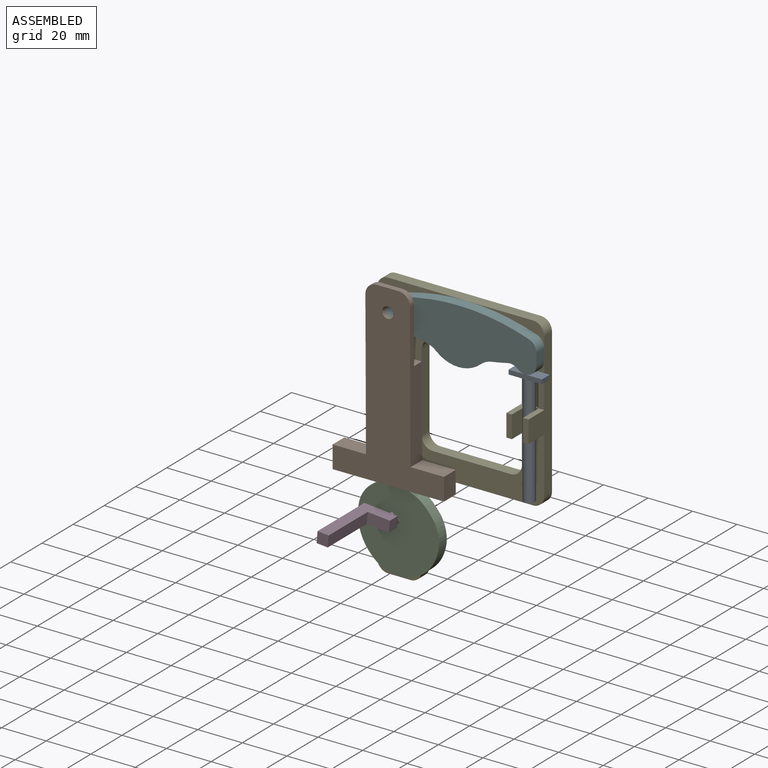
[diagram: assembled view]
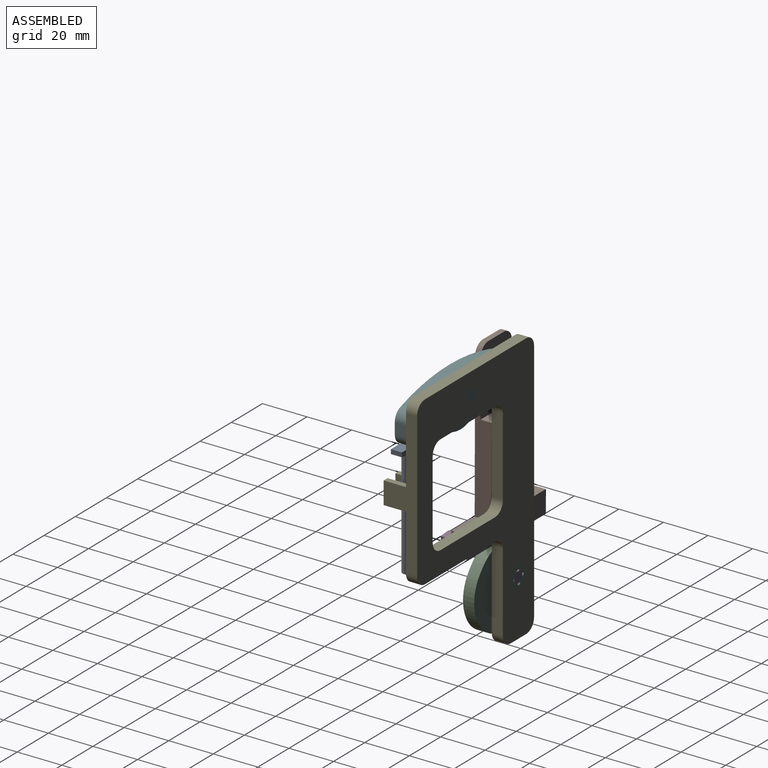
[diagram: assembled view, second angle]
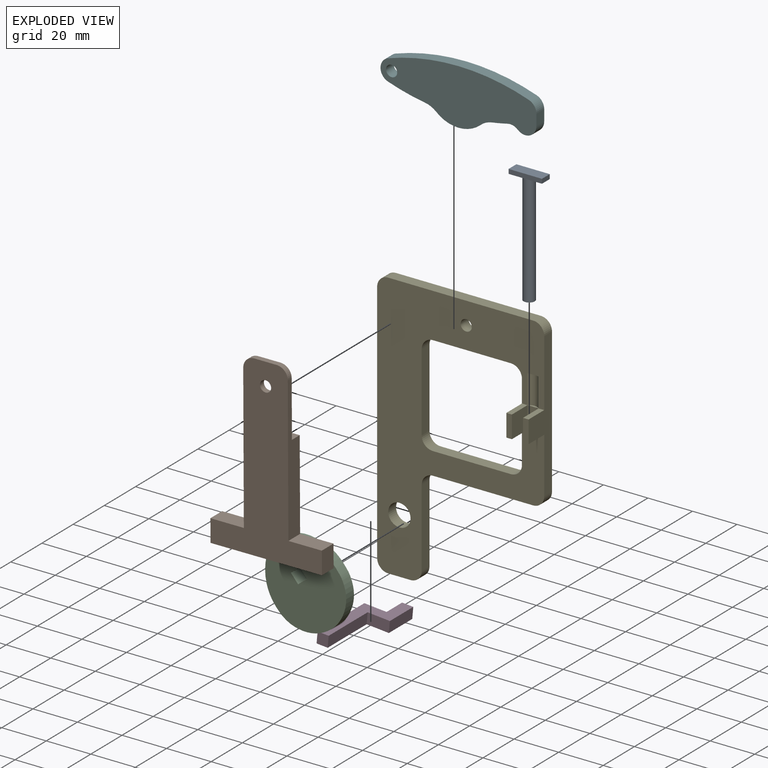
[diagram: exploded view]
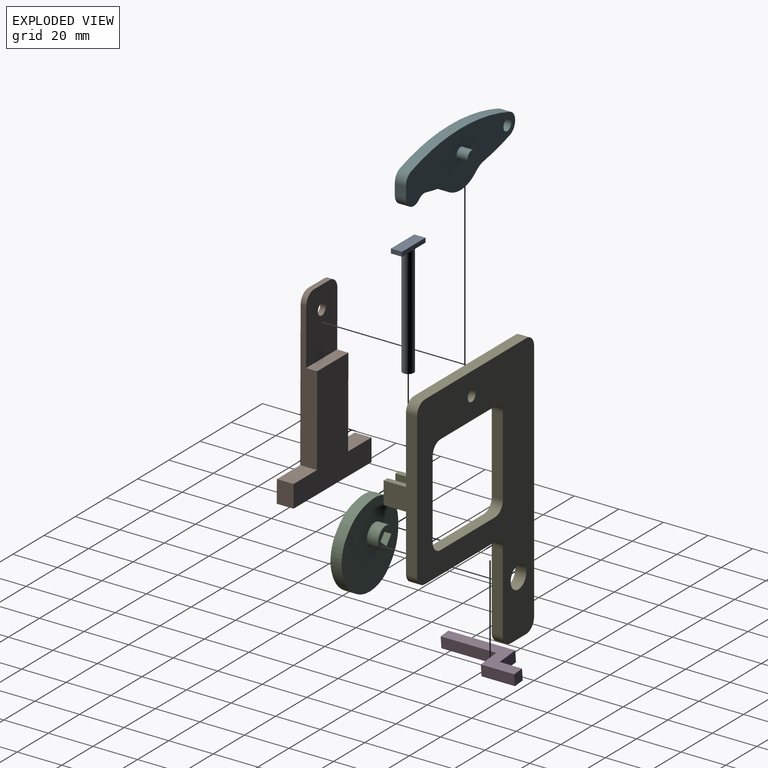
[diagram: exploded view, second angle]
ASSEMBLY  parts=6 mates=5
PART A: 9 faces, bbox 15x5x52 mm
  f0: plane 7.5x5mm, normal (0,0,1), area 27.7mm2, adj f4,f5,f6,f7
  f1: plane 15x5mm, normal (0,0,-1), area 75mm2, adj f2,f4,f5,f6
  f2: plane 5x2mm, normal (1,0,0), area 10mm2, adj f1,f3,f5,f6
  f3: plane 7.5x5mm, normal (0,0,1), area 27.7mm2, adj f2,f5,f6,f7
  f4: plane 5x2mm, normal (-1,0,0), area 10mm2, adj f0,f1,f5,f6
  f5: plane 15x2mm, normal (0,-1,0), area 30mm2, adj f0,f1,f2,f3,f4
  f6: plane 15x2mm, normal (0,1,0), area 30mm2, adj f0,f1,f2,f3,f4
  f7: cylinder r=2.5mm len=50mm, axis (0,0,-1), area 785.4mm2, adj f0,f3,f8
  f8: plane 5x5mm, normal (0,0,1), area 19.6mm2, adj f7
PART B: 15 faces, bbox 50x7.5x80 mm
  f0: plane 65x7.5mm, normal (-1,0,0), area 362.5mm2, adj f1,f9,f10,f11,f12,f14
  f1: plane 50x50mm, normal (0,1,0), area 1300mm2, adj f0,f3,f4,f5,f6,f7,f9,f11
  f2: cylinder r=2.5mm len=5mm, axis (0,1,0), area 39.3mm2, adj f10,f12
  f3: plane 10x7.5mm, normal (-1,0,0), area 75mm2, adj f1,f4,f9,f10
  f4: plane 50x7.5mm, normal (0,0,-1), area 375mm2, adj f1,f3,f5,f10
  f5: plane 10x7.5mm, normal (1,0,0), area 75mm2, adj f1,f4,f6,f10
  f6: plane 15x7.5mm, normal (0,0,1), area 112.5mm2, adj f1,f5,f7,f10
  f7: plane 65x7.5mm, normal (1,0,0), area 362.5mm2, adj f1,f6,f10,f11,f12,f13
  f8: plane 10x2.5mm, normal (0,0,1), area 25mm2, adj f10,f12,f13,f14
  f9: plane 15x7.5mm, normal (0,0,1), area 112.5mm2, adj f0,f1,f3,f10
  f10: plane 80x50mm, normal (0,-1,0), area 1869.6mm2, adj f0,f2,f3,f4,f5,f6,f7,f8
  f11: plane 20x5mm, normal (0,0,1), area 100mm2, adj f0,f1,f7,f12
  f12: plane 30x20mm, normal (0,1,0), area 569.6mm2, adj f0,f2,f7,f8,f11,f13,f14
  f13: cylinder r=5mm len=5mm, axis (0,-1,0), area 19.6mm2, adj f7,f8,f10,f12
  f14: cylinder r=5mm len=5mm, axis (0,1,0), area 19.6mm2, adj f0,f8,f10,f12
PART C: 25 faces, bbox 36.6x10x36.6 mm
  f0: cylinder r=15mm len=15mm, axis (0,1,0), area 117.8mm2, adj f1,f16,f17,f18
  f1: cylinder r=28.34mm len=8mm, axis (0,1,0), area 40.5mm2, adj f0,f2,f17,f18
  f2: cylinder r=17.82mm len=7.8mm, axis (0,1,0), area 46.1mm2, adj f1,f3,f17,f18
  f3: cylinder r=183.56mm len=5mm, axis (0,1,0), area 12.8mm2, adj f2,f4,f17,f18
  f4: cylinder r=12.56mm len=5mm, axis (0,1,0), area 13.4mm2, adj f3,f5,f17,f18
  f5: cylinder r=17.6mm len=5.14mm, axis (0,1,0), area 27.8mm2, adj f4,f6,f17,f18
  f6: cylinder r=15.73mm len=5.75mm, axis (0,1,0), area 28.9mm2, adj f5,f7,f17,f18
  f7: cylinder r=19.86mm len=5.65mm, axis (0,1,0), area 29.6mm2, adj f6,f8,f17,f18
  f8: cylinder r=16.77mm len=5mm, axis (0,1,0), area 30.1mm2, adj f7,f9,f17,f18
  f9: cylinder r=20.31mm len=5mm, axis (0,1,0), area 30mm2, adj f8,f10,f17,f18
  f10: cylinder r=16.42mm len=5.65mm, axis (0,1,0), area 29.7mm2, adj f9,f11,f17,f18
  f11: cylinder r=18.95mm len=5.75mm, axis (0,1,0), area 28.9mm2, adj f10,f12,f17,f18
  f12: cylinder r=14.69mm len=5.14mm, axis (0,1,0), area 27.8mm2, adj f11,f13,f17,f18
  f13: cylinder r=17.81mm len=5mm, axis (0,1,0), area 13.4mm2, adj f12,f14,f17,f18
  f14: cylinder r=33.13mm len=5mm, axis (0,1,0), area 12.8mm2, adj f13,f15,f17,f18
  f15: cylinder r=20.24mm len=7.8mm, axis (0,1,0), area 46mm2, adj f14,f16,f17,f18
  f16: cylinder r=23.25mm len=8mm, axis (0,1,0), area 40.6mm2, adj f0,f15,f17,f18
  f17: plane 36.63x36.58mm, normal (0,-1,0), area 974.3mm2, adj f0,f1,f2,f3,f4,f5,f6,f7
  f18: plane 36.63x36.58mm, normal (0,1,0), area 1027.8mm2, adj f0,f1,f2,f3,f4,f5,f6,f7
  f19: cylinder r=5mm len=10mm, axis (0,1,0), area 157.1mm2, adj f17,f20
  f20: plane 10x10mm, normal (0,-1,0), area 53.5mm2, adj f19,f21,f22,f23,f24
  f21: plane 10x3.54mm, normal (-0.71,0,0.71), area 50mm2, adj f18,f20,f22,f24
  f22: plane 10x3.54mm, normal (-0.71,0,-0.71), area 50mm2, adj f18,f20,f21,f23
  f23: plane 10x3.54mm, normal (0.71,0,-0.71), area 50mm2, adj f18,f20,f22,f24
  f24: plane 10x3.54mm, normal (0.71,0,0.71), area 50mm2, adj f18,f20,f21,f23
PART D: 10 faces, bbox 40x5x15 mm
  f0: plane 30x5mm, normal (0,0,1), area 150mm2, adj f1,f7,f8,f9
  f1: plane 5x5mm, normal (-1,0,0), area 25mm2, adj f0,f2,f8,f9
  f2: plane 25x5mm, normal (0,0,-1), area 125mm2, adj f1,f3,f8,f9
  f3: plane 10x5mm, normal (-1,0,0), area 50mm2, adj f2,f4,f8,f9
  f4: plane 15x5mm, normal (0,0,-1), area 75mm2, adj f3,f5,f8,f9
  f5: plane 5x5mm, normal (1,0,0), area 25mm2, adj f4,f6,f8,f9
  f6: plane 10x5mm, normal (0,0,1), area 50mm2, adj f5,f7,f8,f9
  f7: plane 10x5mm, normal (1,0,0), area 50mm2, adj f0,f6,f8,f9
  f8: plane 40x15mm, normal (0,-1,0), area 250mm2, adj f0,f1,f2,f3,f4,f5,f6,f7
  f9: plane 40x15mm, normal (0,1,0), area 250mm2, adj f0,f1,f2,f3,f4,f5,f6,f7
PART E: 35 faces, bbox 75x15x120 mm
  f0: plane 35x5mm, normal (1,0,0), area 175mm2, adj f2,f12,f26,f34
  f1: plane 35x15mm, normal (-1,0,0), area 275mm2, adj f2,f12,f13,f14,f16,f25,f28
  f2: plane 120x75mm, normal (0,-1,0), area 4288.1mm2, adj f0,f1,f3,f4,f5,f6,f7,f8
  f3: plane 65x15mm, normal (1,0,0), area 425mm2, adj f2,f12,f17,f19,f20,f29,f30
  f4: plane 65x5mm, normal (0,0,1), area 325mm2, adj f2,f12,f30,f31
  f5: plane 110x5mm, normal (-1,0,0), area 550mm2, adj f2,f12,f31,f32
  f6: plane 10x5mm, normal (0,0,-1), area 50mm2, adj f2,f12,f32,f33
  f7: plane 35x5mm, normal (1,0,0), area 175mm2, adj f2,f12,f27,f33
  f8: plane 35x5mm, normal (0,0,-1), area 175mm2, adj f2,f12,f28,f34
  f9: cylinder r=5mm len=10mm, axis (0,1,0), area 157.1mm2, adj f2,f12
  f10: plane 45x5mm, normal (0,0,-1), area 225mm2, adj f2,f12,f27,f29
  f11: cylinder r=2.5mm len=5mm, axis (0,1,0), area 78.5mm2, adj f2,f12
  f12: plane 120x75mm, normal (0,1,0), area 4401.8mm2, adj f0,f1,f3,f4,f5,f6,f7,f8
  f13: plane 10x2.5mm, normal (0,0,1), area 25mm2, adj f1,f2,f15,f16
  f14: plane 10x2.5mm, normal (0,0,-1), area 25mm2, adj f1,f2,f15,f16
  f15: plane 10x10mm, normal (1,0,0), area 100mm2, adj f2,f13,f14,f16
  f16: plane 10x2.5mm, normal (0,-1,0), area 25mm2, adj f1,f13,f14,f15
  f17: plane 10x2.5mm, normal (0,0,1), area 25mm2, adj f2,f3,f18,f20
  f18: plane 10x10mm, normal (-1,0,0), area 100mm2, adj f2,f17,f19,f20
  f19: plane 10x2.5mm, normal (0,0,-1), area 25mm2, adj f2,f3,f18,f20
  f20: plane 10x2.5mm, normal (0,-1,0), area 25mm2, adj f3,f17,f18,f19
  f21: plane 35x5mm, normal (0,0,1), area 175mm2, adj f2,f12,f25,f26
  f22: cylinder r=3.5mm len=13mm, axis (0,0,-1), area 70.5mm2, adj f2,f23,f24
  f23: plane 4.9x1mm, normal (0,0,-1), area 3.4mm2, adj f2,f22
  f24: plane 4.9x1mm, normal (0,0,1), area 3.4mm2, adj f2,f22
  f25: cylinder r=5mm len=5mm, axis (0,-1,0), area 39.3mm2, adj f1,f2,f12,f21
  f26: cylinder r=5mm len=5mm, axis (0,1,0), area 39.3mm2, adj f0,f2,f12,f21
  f27: cylinder r=5mm len=5mm, axis (0,-1,0), area 39.3mm2, adj f2,f7,f10,f12
  f28: cylinder r=5mm len=5mm, axis (0,1,0), area 39.3mm2, adj f1,f2,f8,f12
  f29: cylinder r=5mm len=5mm, axis (0,1,0), area 39.3mm2, adj f2,f3,f10,f12
  f30: cylinder r=5mm len=5mm, axis (0,1,0), area 39.3mm2, adj f2,f3,f4,f12
  f31: cylinder r=5mm len=5mm, axis (0,1,0), area 39.3mm2, adj f2,f4,f5,f12
  f32: cylinder r=5mm len=5mm, axis (0,-1,0), area 39.3mm2, adj f2,f5,f6,f12
  f33: cylinder r=5mm len=5mm, axis (0,1,0), area 39.3mm2, adj f2,f6,f7,f12
  f34: cylinder r=5mm len=5mm, axis (0,-1,0), area 39.3mm2, adj f0,f2,f8,f12
PART F: 16 faces, bbox 70x10x25 mm
  f0: cylinder r=97.5mm len=16.59mm, axis (0,1,0), area 85.5mm2, adj f1,f10,f12,f13
  f1: cylinder r=10mm len=5.09mm, axis (0,1,0), area 28.5mm2, adj f0,f2,f12,f13
  f2: cylinder r=15mm len=19.89mm, axis (0,1,0), area 108.7mm2, adj f1,f3,f12,f13
  f3: cylinder r=10mm len=5.09mm, axis (0,1,0), area 28.5mm2, adj f2,f4,f12,f13
  f4: cylinder r=97.5mm len=7.04mm, axis (0,1,0), area 35.9mm2, adj f3,f5,f12,f13
  f5: cylinder r=5mm len=5mm, axis (0,1,0), area 24.4mm2, adj f4,f6,f12,f13
  f6: cylinder r=5mm len=8.4mm, axis (0,1,0), area 57.9mm2, adj f5,f7,f12,f13
  f7: plane 5x5mm, normal (1,0,0), area 25mm2, adj f6,f8,f12,f13
  f8: cylinder r=5mm len=5mm, axis (0,1,0), area 31mm2, adj f7,f9,f12,f13
  f9: cylinder r=97.5mm len=63.24mm, axis (0,1,0), area 322mm2, adj f8,f10,f12,f13
  f10: cylinder r=5mm len=9.46mm, axis (0,1,0), area 62mm2, adj f0,f9,f12,f13
  f11: cylinder r=2.5mm len=5mm, axis (0,1,0), area 78.5mm2, adj f12,f13
  f12: plane 70x25mm, normal (0,-1,0), area 1198.1mm2, adj f0,f1,f2,f3,f4,f5,f6,f7
  f13: plane 70x25mm, normal (0,1,0), area 1178.5mm2, adj f0,f1,f2,f3,f4,f5,f6,f7
  f14: cylinder r=2.5mm len=5mm, axis (0,-1,0), area 78.5mm2, adj f13,f15
  f15: plane 5x5mm, normal (0,1,0), area 19.6mm2, adj f14
PLACE A rot(axis=(1,0,0),180deg) t=(30,-10,-57)mm
PLACE B rot(axis=(0,-1,0),0.2deg) t=(-29.72,-5,-70)mm
PLACE C rot(axis=(-0.04,0,-1),180deg) t=(-30,-10,-85)mm
PLACE D rot(axis=(-0.56,-0.56,0.61),117.1deg) t=(-42.67,-40,-86.37)mm
PLACE E t=(-30,0,-85)mm
PLACE F t=(0,-5,0)mm
MATE fastened C.f0 <-> D.f5  axis (0,1,0) through (-30,0,-85)mm
MATE revolute C.f19 <-> E.f9  axis (0,1,0) through (-30,0,-85)mm
MATE slider E.f23 <-> A.f0  axis (0,0,-1) through (30,-5,-12)mm
MATE revolute E.f11 <-> F.f14  axis (0,1,0) through (0,0,0)mm
MATE revolute F.f11 <-> B.f2  axis (0,-1,0) through (-30,-10,0)mm
